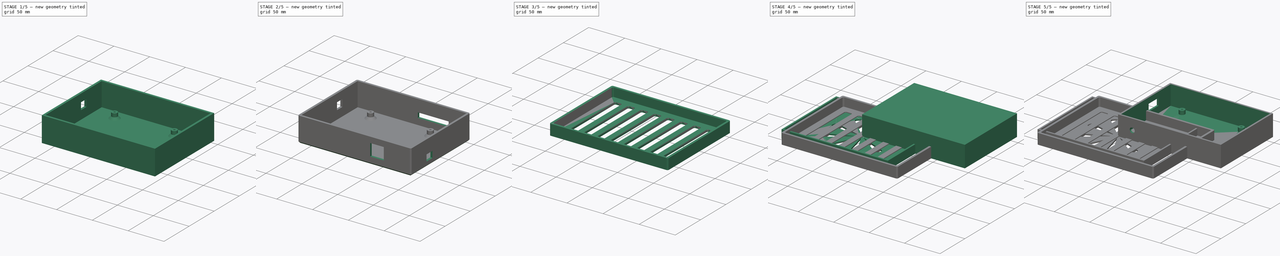
[diagram: build sequence overview — one tinted view per stage of 5, left to right]
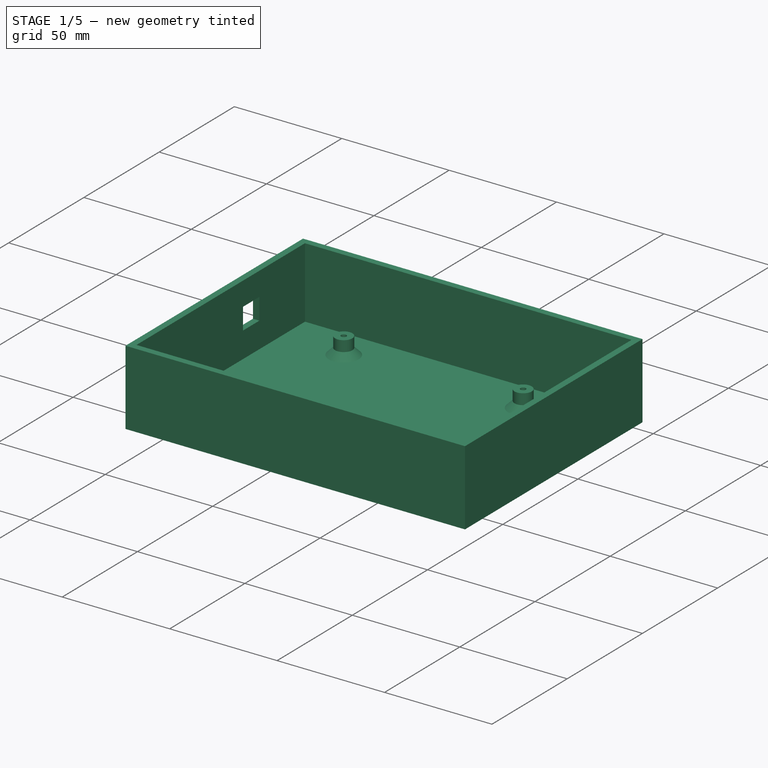
[diagram: stage 1 of 5 — iso view after this stage's code; geometry added in this stage tinted green]
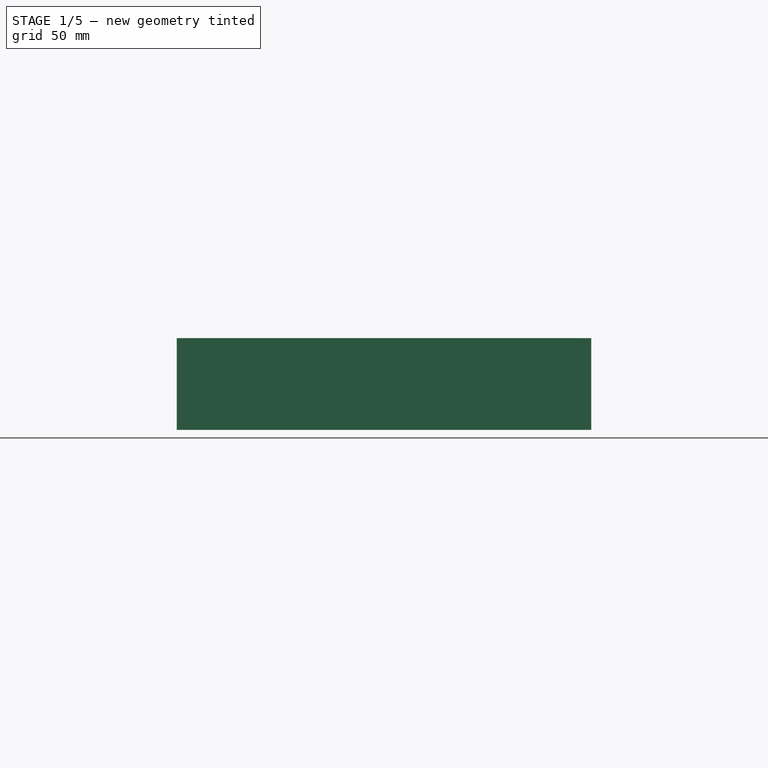
[diagram: stage 1 of 5 — front view after this stage's code; geometry added in this stage tinted green]
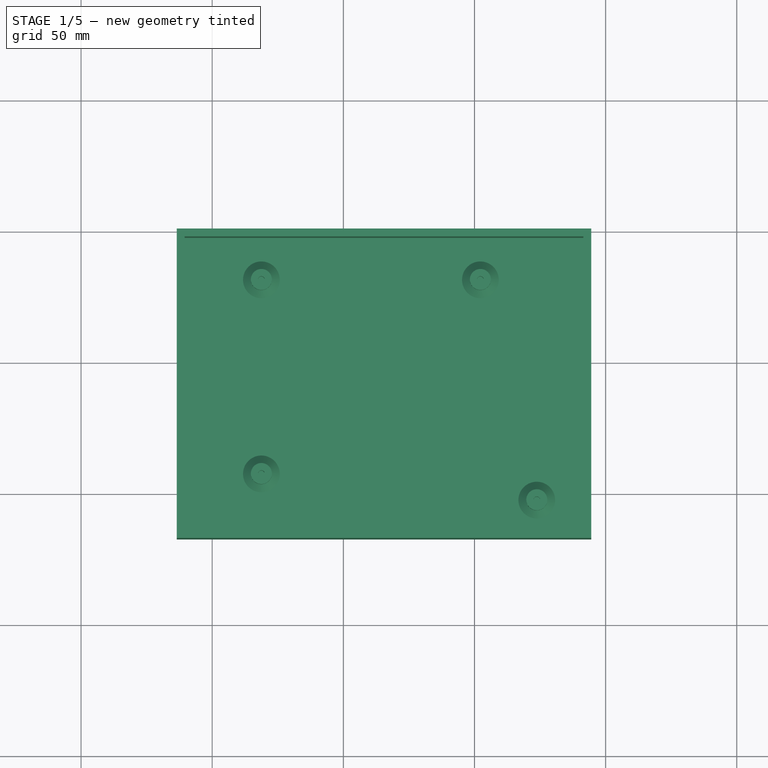
[diagram: stage 1 of 5 — top view after this stage's code; geometry added in this stage tinted green]
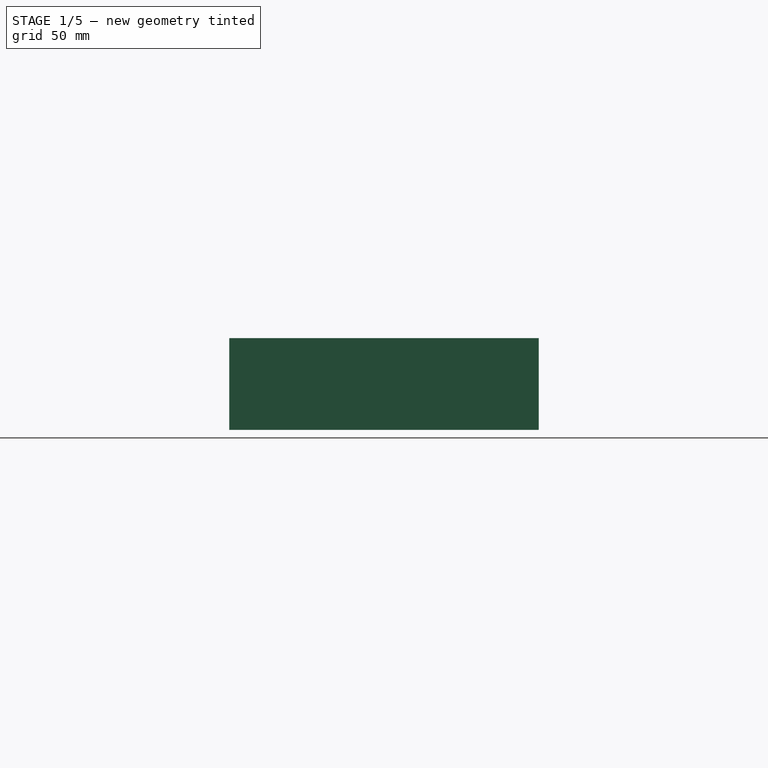
[diagram: stage 1 of 5 — right view after this stage's code; geometry added in this stage tinted green]
FCSTD DOCUMENT  (FreeCAD 1.2R20260224 (Git shallow))
Label: k1 board case
License: All rights reserved
LicenseURL: https://en.wikipedia.org/wiki/All_rights_reserved
objects: Part::Feature×31, Sketcher::SketchObject×20, App::Point×18, App::Part×14, PartDesign::Pocket×13, PartDesign::Pad×6, PartDesign::Body×4, PartDesign::SubShapeBinder×3, PartDesign::Chamfer×2, PartDesign::Fillet×2, PartDesign::PolarPattern×1, PartDesign::LinearPattern×1
note: 151 computed .brp shape members not serialized (recipe doc carries the construction recipe); baked Part::Feature solids carry a one-line shape summary decoded from their .brp

FEATURE [PartDesign::Body] Body001  label="OldTop"
  AllowCompound = false
  Group = -> [Sketch007,Pad002,Sketch008,Pocket004,Sketch009,Pocket005,PolarPattern]
  Origin = -> Origin001
  Tip = -> PolarPattern
FEATURE [App::Point] Origin002  label="Origin"
  Role = Origin
FEATURE [App::Point] Origin003  label="Origin"
  Role = Origin
FEATURE [Part::Feature] Part__Feature  label="B4B-PH-K-S v001"
  Placement = pos=(132.483,89.667,0) rot=(0,0,-1;1.5708rad)
  shape: bbox 4.5 x 9.9 x 9.4 mm, 84 faces (baked)
FEATURE [Part::Feature] Part__Feature001  label="B4B-PH-K-S v002"
  Placement = pos=(132.5,65.65,0) rot=(0,0,-1;1.5708rad)
  shape: bbox 4.5 x 9.9 x 9.4 mm, 84 faces (baked)
FEATURE [Part::Feature] Part__Feature002  label="B4B-PH-K-S v003"
  Placement = pos=(17.6,95.95,-7.461e-13) rot=(0,0,1;0rad)
  shape: bbox 9.9 x 4.5 x 9.4 mm, 84 faces (baked)
FEATURE [Part::Feature] Part__Feature003  label="B5B-PH-K-S v2"
  Placement = pos=(87.7153,6.21529,0) rot=(0,0,1;1.5708rad)
  shape: bbox 4.5 x 11.9 x 9.4 mm, 98 faces (baked)
FEATURE [Part::Feature] Part__Feature004  label="B4B-PH-K-S v004"
  Placement = pos=(132.5,51.45,0) rot=(0,0,-1;1.5708rad)
  shape: bbox 4.5 x 9.9 x 9.4 mm, 84 faces (baked)
FEATURE [Part::Feature] Part__Feature005  label="B3B-PH-K-S v2"
  Placement = pos=(35.4,95.95,0) rot=(0,0,1;0rad)
  shape: bbox 7.9 x 4.5 x 9.4 mm, 70 faces (baked)
FEATURE [Part::Feature] Part__Feature006  label="B3B-PH-K-S v001"
  Placement = pos=(4.1,27.3213,-7.99e-14) rot=(0,0,1;3.14159rad)
  shape: bbox 7.9 x 4.5 x 9.4 mm, 70 faces (baked)
FEATURE [Part::Feature] Part__Feature007  label="B2B-PH-K-S v2"
  Placement = pos=(2.0729,33.5729,0) rot=(0,0,1;1.5708rad)
  shape: bbox 4.5 x 5.9 x 9.4 mm, 56 faces (baked)
FEATURE [Part::Feature] Part__Feature008  label="B2B-PH-K-S v001"
  Placement = pos=(7.0729,33.5729,0) rot=(0,0,1;1.5708rad)
  shape: bbox 4.5 x 5.9 x 9.4 mm, 56 faces (baked)
FEATURE [Part::Feature] Part__Feature009  label="JST 2p"
  Placement = pos=(-0.30094,0.0605134,0.151975) rot=(0,0,1;0rad)
  shape: bbox 7.54 x 5.7 x 10 mm, 72 faces (baked)
FEATURE [App::Part] JST_2_54X2P_v2  label="JST 2.54X2P v2"
  Group = -> [Part__Feature009]
  Origin = -> Origin324
  Placement = pos=(4.9,22.1,0) rot=(0,0,1;3.14159rad)
FEATURE [App::Point] Origin325  label="Origin441"
  Role = Origin
FEATURE [Part::Feature] Part__Feature010  label="JST 2p001"
  Placement = pos=(-0.30094,0.0605134,0.151975) rot=(0,0,1;0rad)
  shape: bbox 7.54 x 5.7 x 10 mm, 72 faces (baked)
FEATURE [App::Part] JST_2_54X2P_v001  label="JST 2.54X2P v001"
  Group = -> [Part__Feature010]
  Origin = -> Origin326
  Placement = pos=(4.9,16.1,0) rot=(0,0,1;3.14159rad)
FEATURE [App::Point] Origin327  label="Origin443"
  Role = Origin
FEATURE [Part::Feature] Part__Feature011  label="JST 2p002"
  Placement = pos=(-0.30094,0.0605134,0.151975) rot=(0,0,1;0rad)
  shape: bbox 7.54 x 5.7 x 10 mm, 72 faces (baked)
FEATURE [App::Part] JST_2_54X2P_v002  label="JST 2.54X2P v002"
  Group = -> [Part__Feature011]
  Origin = -> Origin328
  Placement = pos=(4.9,9.6,0) rot=(0,0,1;3.14159rad)
FEATURE [App::Point] Origin329  label="Origin445"
  Role = Origin
FEATURE [Part::Feature] Part__Feature012  label="JST 4p"
  shape: bbox 12.62 x 5.7 x 10 mm, 116 faces (baked)
FEATURE [App::Part] JST_2_54X4P_v2  label="JST 2.54X4P v2"
  Group = -> [Part__Feature012]
  Origin = -> Origin330
  Placement = pos=(75.2,2.8,0) rot=(0,0,1;3.14159rad)
FEATURE [App::Point] Origin331  label="Origin447"
  Role = Origin
FEATURE [Part::Feature] Part__Feature013  label="JST 4p001"
  shape: bbox 12.62 x 5.7 x 10 mm, 116 faces (baked)
FEATURE [App::Part] JST_2_54X4P_v001  label="JST 2.54X4P v001"
  Group = -> [Part__Feature013]
  Origin = -> Origin332
  Placement = pos=(49.6,2.8,0) rot=(0,0,1;3.14159rad)
FEATURE [App::Point] Origin333  label="Origin449"
  Role = Origin
FEATURE [Part::Feature] Part__Feature014  label="JST 4p002"
  shape: bbox 12.62 x 5.7 x 10 mm, 116 faces (baked)
FEATURE [App::Part] JST_2_54X4P_v002  label="JST 2.54X4P v002"
  Group = -> [Part__Feature014]
  Origin = -> Origin334
  Placement = pos=(62.4,2.8,0) rot=(0,0,1;3.14159rad)
FEATURE [App::Point] Origin335  label="Origin451"
  Role = Origin
FEATURE [Part::Feature] Part__Feature015  label="JST 4p003"
  shape: bbox 12.62 x 5.7 x 10 mm, 116 faces (baked)
FEATURE [App::Part] JST_2_54X4P_v003  label="JST 2.54X4P v003"
  Group = -> [Part__Feature015]
  Origin = -> Origin336
  Placement = pos=(81.3,2.6,0) rot=(0,0,1;1.5708rad)
FEATURE [App::Point] Origin337  label="Origin453"
  Role = Origin
FEATURE [Part::Feature] Part__Feature016  label="B2P-VH v2"
  Placement = pos=(3.8886,40.8886,0) rot=(0,0,1;1.5708rad)
  shape: bbox 8.5 x 7.86 x 14.6 mm, 42 faces (baked)
FEATURE [Part::Feature] Part__Feature017  label="B2P-VH v001"
  Placement = pos=(3.8886,49.3886,0) rot=(0,0,1;1.5708rad)
  shape: bbox 8.5 x 7.86 x 14.6 mm, 42 faces (baked)
FEATURE [Part::Feature] Part__Feature018  label="DG129-5.0-02P-14-00AH v4"
  Placement = pos=(10.9997,64.0189,-0.0191324) rot=(0.57735,-0.57735,-0.57735;2.0944rad)
  shape: bbox 10.5 x 14.5 x 23 mm, 396 faces (baked)
FEATURE [Part::Feature] Part__Feature019  label="DG129-5.0-02P-14-00AH v001"
  Placement = pos=(10.9997,74.0189,-0.0191324) rot=(0.57735,-0.57735,-0.57735;2.0944rad)
  shape: bbox 10.5 x 14.5 x 23 mm, 396 faces (baked)
FEATURE [Part::Feature] Part__Feature020  label="FAUS"
  Placement = pos=(1.1e-15,-2.3368,0) rot=(0,0,1;0rad)
  shape: bbox 1.57 x 0.3 x 2.54 mm, 8 faces (baked)
FEATURE [Part::Feature] Part__Feature021  label="FAUS001"
  Placement = pos=(1.1e-15,-2.3368,0) rot=(0,0,1;0rad)
  shape: bbox 1.57 x 0.3 x 2.54 mm, 8 faces (baked)
FEATURE [Part::Feature] Part__Feature022  label="FAUS002"
  Placement = pos=(1.1e-15,-2.3368,0) rot=(0,0,1;0rad)
  shape: bbox 1.57 x 0.3 x 2.54 mm, 8 faces (baked)
FEATURE [Part::Feature] Part__Feature023  label="FAUS003"
  Placement = pos=(1.1e-15,-2.3368,0) rot=(0,0,1;0rad)
  shape: bbox 16 x 6 x 8 mm, 26 faces (baked)
FEATURE [Part::Feature] Part__Feature024  label="FAUS004"
  Placement = pos=(1.1e-15,-2.3368,0) rot=(0,0,1;0rad)
  shape: bbox 1.57 x 0.3 x 2.54 mm, 8 faces (baked)
FEATURE [Part::Feature] Part__Feature025  label="FAUS005"
  Placement = pos=(1.1e-15,-2.3368,0) rot=(0,0,1;0rad)
  shape: bbox 3.66 x 2.011 x 4.96 mm, 22 faces (baked)
FEATURE [Part::Feature] Part__Feature026  label="FAUS006"
  Placement = pos=(1.1e-15,-2.3368,0) rot=(0,0,1;0rad)
  shape: bbox 3.66 x 2.012 x 4.96 mm, 22 faces (baked)
FEATURE [App::Part] FAUS007
  Group = -> [Part__Feature020,Part__Feature021,Part__Feature022,Part__Feature023,Part__Feature024,Part__Feature025,Part__Feature026]
  Origin = -> Origin338
FEATURE [App::Point] Origin339  label="Origin455"
  Role = Origin
FEATURE [App::Part] Fuse_connector_v2  label="Fuse connector v2"
  Group = -> [FAUS007]
  Origin = -> Origin340
  Placement = pos=(10,79,0) rot=(0,0,1;0rad)
FEATURE [App::Point] Origin341  label="Origin457"
  Role = Origin
FEATURE [Part::Feature] Part__Feature027  label="Fuse - mini 15A v2"
  Placement = pos=(10.0341,79.3067,18.4917) rot=(0,0,-1;0.001182rad)
  shape: bbox 11 x 3.912 x 8.8 mm, 98 faces (baked)
FEATURE [Part::Feature] Part__Feature028  label="Fuse - mini 15A v001"
  Placement = pos=(10.0341,79.3067,18.4917) rot=(0,0,-1;0.001182rad)
  shape: bbox 10.9 x 0.9129 x 16.2 mm, 72 faces (baked)
FEATURE [App::Part] Fuse___mini_15A_v002  label="Fuse - mini 15A v002"
  Group = -> [Part__Feature027,Part__Feature028]
  Origin = -> Origin342
FEATURE [App::Point] Origin343  label="Origin459"
  Role = Origin
FEATURE [Part::Feature] Part__Feature029  label="SOLID028"
  shape: bbox 138 x 98 x 1.7 mm, 14 faces (baked)
FEATURE [App::Part] K1_Motherboard  label="K1 Motherboard"
  Group = -> [Part__Feature,Part__Feature001,Part__Feature002,Part__Feature003,Part__Feature004,Part__Feature005,Part__Feature006,Part__Feature007,Part__Feature008,JST_2_54X2P_v2,JST_2_54X2P_v001,JST_2_54X2P_v002,JST_2_54X4P_v2,JST_2_54X4P_v001,JST_2_54X4P_v002,JST_2_54X4P_v003,Part__Feature016,Part__Feature017,Part__Feature018,Part__Feature019,Fuse_connector_v2,Fuse___mini_15A_v002,Part__Feature029]
  Origin = -> Origin344
  Placement = pos=(142.25,16.5,43.05) rot=(0.707107,-0.707107,0;3.14159rad)
FEATURE [App::Point] Origin345  label="Origin461"
  Role = Origin
FEATURE [App::Part] K1_Motherboard_v18  label="K1 Motherboard v18"
  Group = -> [K1_Motherboard]
  Origin = -> Origin346
FEATURE [App::Point] Origin347  label="Origin463"
  Role = Origin
FEATURE [App::Part] Electrical_Bay  label="Electrical Bay"
  Group = -> [K1_Motherboard_v18]
  Origin = -> Origin348
FEATURE [App::Point] Origin349  label="Origin465"
  Role = Origin
FEATURE [App::Part] Creality_K1_Assembly___Alpha_v1  label="Creality K1 Assembly - Alpha v1"
  Group = -> [Electrical_Bay]
  Origin = -> Origin350
  Placement = pos=(-37,85,42) rot=(-0.707107,0.707107,0;3.14159rad)
FEATURE [App::Point] Origin351  label="Origin467"
  Role = Origin
FEATURE [App::Point] Origin353  label="Origin469"
  Role = Origin
FEATURE [PartDesign::SubShapeBinder] Binder001
  BindCopyOnChange = 0
  BindMode = 0
  ClaimChildren = false
  Context = -> Body003 [Binder001.]
  Fuse = false
  MakeFace = true
  OffsetFill = false
  OffsetIntersection = false
  OffsetJoinType = 0
  OffsetOpenResult = false
  PartialLoad = false
  Placement = pos=(0,0,14) rot=(0,0,1;0rad)
  Refine = true
  Relative = true
  Support = -> [Creality_K1_Assembly___Alpha_v1]
  _Version = 2
FEATURE [Sketcher::SketchObject] Sketch010
  ArcFitTolerance = 1e-06
  AttachmentSupport = -> [Origin352]
  ExternalGeometry = -> [Binder001]
  ExternalTypes = [0,0]
  FullyConstrained = true
  MakeInternals = false
  MapMode = 5
  sketch-geometry (4):
    g0: LineSegment StartX=-63.5 StartY=50.75 StartZ=0 EndX=-63.5 EndY=-67.25 EndZ=0
    g1: LineSegment StartX=-63.5 StartY=-67.25 StartZ=0 EndX=94.5 EndY=-67.25 EndZ=0
    g2: LineSegment StartX=94.5 StartY=-67.25 StartZ=0 EndX=94.5 EndY=50.75 EndZ=0
    g3: LineSegment StartX=94.5 StartY=50.75 StartZ=0 EndX=-63.5 EndY=50.75 EndZ=0
  constraints (12):
    c: Coincident(g0,g1)
    c: Coincident(g1,g2)
    c: Coincident(g2,g3)
    c: Coincident(g3,g0)
    c: Vertical(g0)
    c: Vertical(g2)
    c: Horizontal(g1)
    c: Horizontal(g3)
    c: DistanceX(g3,g3) = 158
    c: DistanceY(g0,g0) = 118
    c: DistanceX(g0,g-3) = 10
    c: DistanceY(g-4,g0) = 10
FEATURE [PartDesign::Pad] Pad003
  Direction = (0,0,1)
  Length = 35
  Length2 = 10
  Profile = -> Sketch010
  ReferenceAxis = -> Sketch010 [N_Axis]
  Refine = true
  SideType = 0
  Suppressed = false
  Type = 0
  Type2 = 0
FEATURE [Sketcher::SketchObject] Sketch011
  ArcFitTolerance = 1e-06
  AttachmentSupport = -> [Pad003]
  ExternalGeometry = -> [Pad003]
  ExternalTypes = [0,0]
  FullyConstrained = true
  MakeInternals = false
  MapMode = 5
  Placement = pos=(0,0,35) rot=(0,0,1;0rad)
  sketch-geometry (4):
    g0: LineSegment StartX=-60.5 StartY=47.75 StartZ=0 EndX=-60.5 EndY=-64.25 EndZ=0
    g1: LineSegment StartX=-60.5 StartY=-64.25 StartZ=0 EndX=91.5 EndY=-64.25 EndZ=0
    g2: LineSegment StartX=91.5 StartY=-64.25 StartZ=0 EndX=91.5 EndY=47.75 EndZ=0
    g3: LineSegment StartX=91.5 StartY=47.75 StartZ=0 EndX=-60.5 EndY=47.75 EndZ=0
  constraints (12):
    c: Coincident(g1,g2)
    c: Coincident(g2,g3)
    c: Coincident(g3,g0)
    c: Vertical(g0)
    c: Vertical(g2)
    c: Horizontal(g1)
    c: Horizontal(g3)
    c: DistanceX(g2,g-4) = 3
    c: DistanceY(g0,g-3) = 3
    c: DistanceY(g-3,g0) = 3
    c: DistanceX(g-3,g0) = 3
    c: Coincident(g1,g0)
FEATURE [PartDesign::Pocket] Pocket006
  BaseFeature = -> Pad003
  Direction = (0,0,-1)
  Length = 33
  Length2 = 5
  Profile = -> Sketch011
  ReferenceAxis = -> Sketch011 [N_Axis]
  Refine = true
  SideType = 0
  Suppressed = false
  Type = 0
  Type2 = 0
FEATURE [Sketcher::SketchObject] Sketch012
  ArcFitTolerance = 1e-06
  AttachmentSupport = -> [Pocket006]
  ExternalGeometry = -> [Binder001]
  ExternalTypes = [0,0,0,0]
  FullyConstrained = true
  MakeInternals = false
  MapMode = 5
  Placement = pos=(0,0,2) rot=(0,0,1;0rad)
  sketch-geometry (8):
    g0: Circle CenterX=-31.25 CenterY=31.75 CenterZ=0 NormalX=0 NormalY=0 NormalZ=1 AngleXU=0 Radius=4
    g1: Circle CenterX=52.25 CenterY=31.75 CenterZ=0 NormalX=0 NormalY=0 NormalZ=1 AngleXU=0 Radius=4
    g2: Circle CenterX=73.75 CenterY=-52.25 CenterZ=0 NormalX=0 NormalY=0 NormalZ=1 AngleXU=0 Radius=4
    g3: Circle CenterX=-31.25 CenterY=-42.25 CenterZ=0 NormalX=0 NormalY=0 NormalZ=1 AngleXU=0 Radius=4
    g4: Circle CenterX=-31.25 CenterY=31.75 CenterZ=0 NormalX=0 NormalY=0 NormalZ=1 AngleXU=0 Radius=1.25
    g5: Circle CenterX=52.25 CenterY=31.75 CenterZ=0 NormalX=0 NormalY=0 NormalZ=1 AngleXU=0 Radius=1.25
    g6: Circle CenterX=73.75 CenterY=-52.25 CenterZ=0 NormalX=0 NormalY=0 NormalZ=1 AngleXU=0 Radius=1.25
    g7: Circle CenterX=-31.25 CenterY=-42.25 CenterZ=0 NormalX=0 NormalY=0 NormalZ=1 AngleXU=0 Radius=1.25
  constraints (16):
    c: Coincident(g0,g-3)
    c: Coincident(g1,g-4)
    c: Coincident(g2,g-5)
    c: Coincident(g3,g-6)
    c: Equal(g1,g2)
    c: Equal(g2,g3)
    c: Equal(g3,g0)
    c: Diameter(g0) = 8
    c: Coincident(g4,g0)
    c: Coincident(g5,g1)
    c: Coincident(g6,g2)
    c: Coincident(g7,g3)
    c: Equal(g7,g4)
    c: Equal(g4,g5)
    c: Equal(g5,g6)
    c: Diameter(g5) = 2.5
FEATURE [PartDesign::Pad] Pad004
  BaseFeature = -> Pocket006
  Direction = (0,0,1)
  Length = 8
  Length2 = 10
  Profile = -> Sketch012
  ReferenceAxis = -> Sketch012 [N_Axis]
  Refine = true
  SideType = 0
  Suppressed = false
  Type = 0
  Type2 = 0
FEATURE [PartDesign::Chamfer] Chamfer
  Angle = 45
  Base = -> Pad004 [Edge28,Edge27,Edge25,Edge26]
  BaseFeature = -> Pad004
  ChamferType = 0
  FlipDirection = false
  Refine = true
  Size = 3
  Size2 = 1
  SupportTransform = false
  Suppressed = false
  UseAllEdges = false
FEATURE [Sketcher::SketchObject] Sketch013
  ArcFitTolerance = 1e-06
  AttachmentSupport = -> [Chamfer]
  ExternalGeometry = -> [Chamfer]
  ExternalTypes = [0]
  FullyConstrained = false
  MakeInternals = false
  MapMode = 5
  Placement = pos=(-60.5,0,0) rot=(0.57735,0.57735,0.57735;2.0944rad)
  sketch-geometry (4):
    g0: LineSegment StartX=6.58474 StartY=24 StartZ=0 EndX=6.58474 EndY=14 EndZ=0
    g1: LineSegment StartX=6.58474 StartY=14 StartZ=0 EndX=17.4539 EndY=14 EndZ=0
    g2: LineSegment StartX=17.4539 StartY=14 StartZ=0 EndX=17.4539 EndY=24 EndZ=0
    g3: LineSegment StartX=17.4539 StartY=24 StartZ=0 EndX=6.58474 EndY=24 EndZ=0
  constraints (10):
    c: Coincident(g0,g1)
    c: Coincident(g1,g2)
    c: Coincident(g2,g3)
    c: Coincident(g3,g0)
    c: Vertical(g0)
    c: Vertical(g2)
    c: Horizontal(g1)
    c: Horizontal(g3)
    c: Distance(g1,g-3) = 12
    c: DistanceY(g2,g2) = 10
FEATURE [PartDesign::Pocket] Pocket007
  BaseFeature = -> Chamfer
  Direction = (-1,0,0)
  Length = 5
  Length2 = 5
  Profile = -> Sketch013
  ReferenceAxis = -> Sketch013 [N_Axis]
  Refine = true
  SideType = 0
  Suppressed = false
  Type = 2
  Type2 = 0
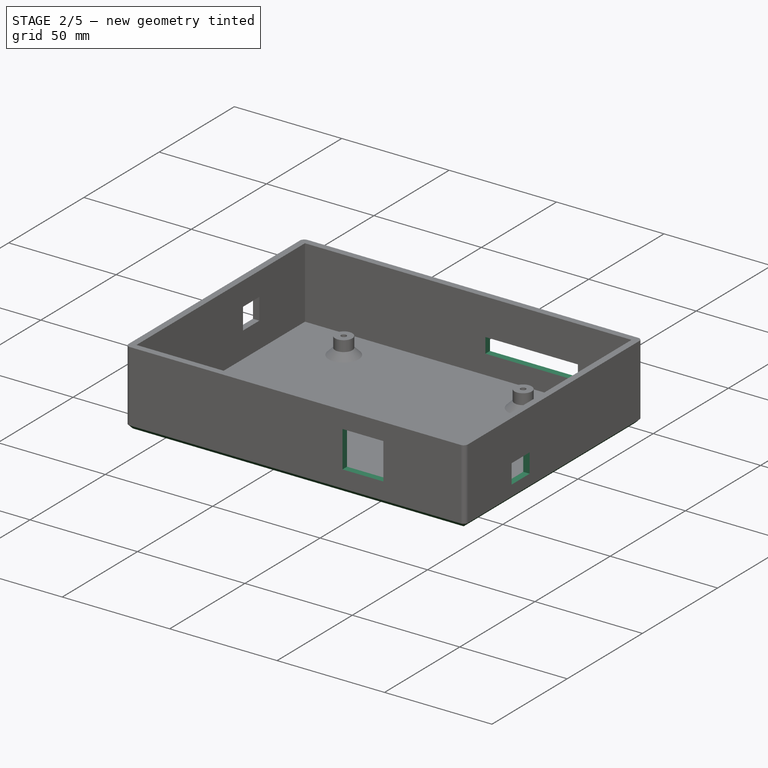
[diagram: stage 2 of 5 — iso view after this stage's code; geometry added in this stage tinted green]
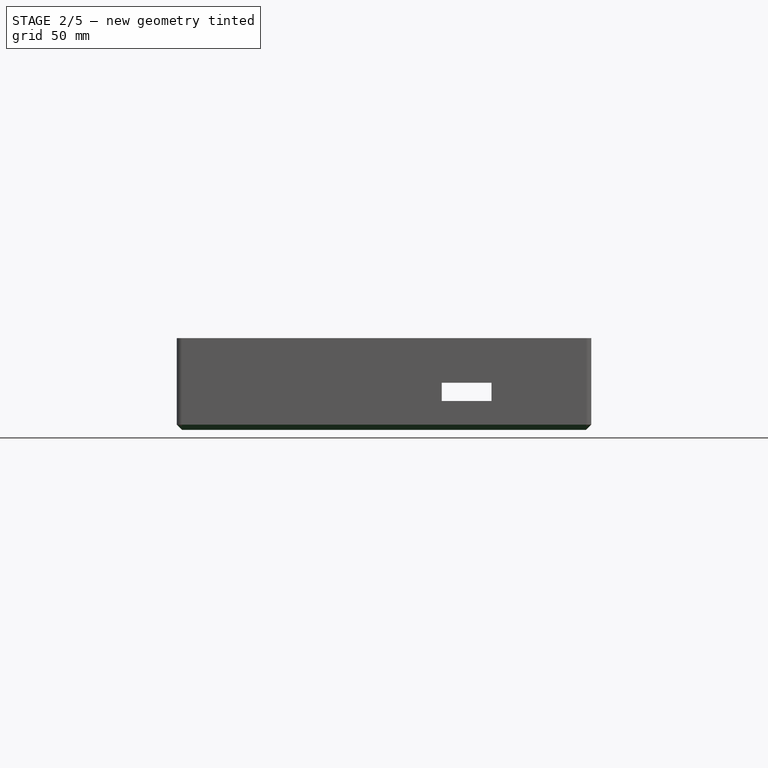
[diagram: stage 2 of 5 — front view after this stage's code; geometry added in this stage tinted green]
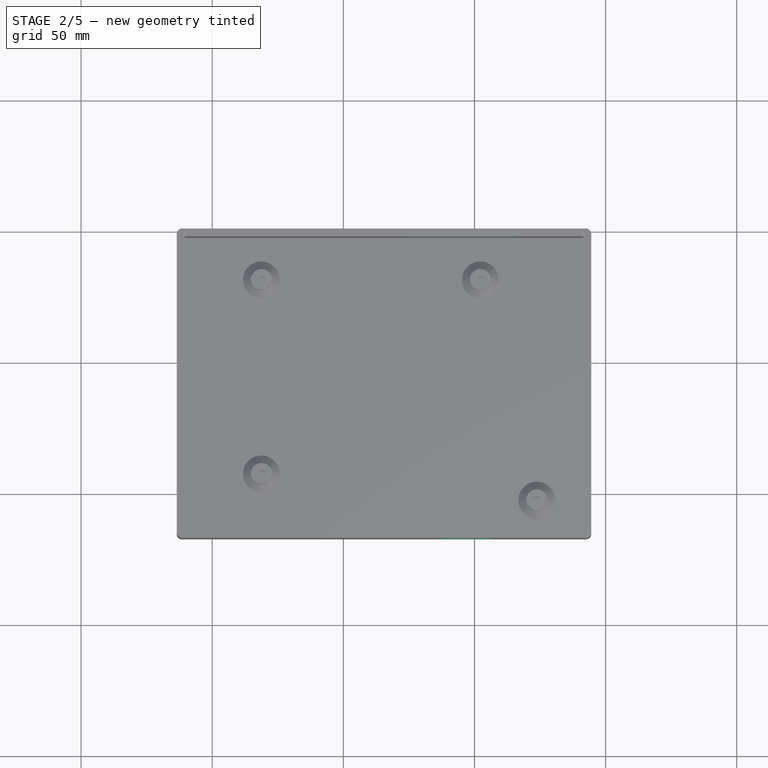
[diagram: stage 2 of 5 — top view after this stage's code; geometry added in this stage tinted green]
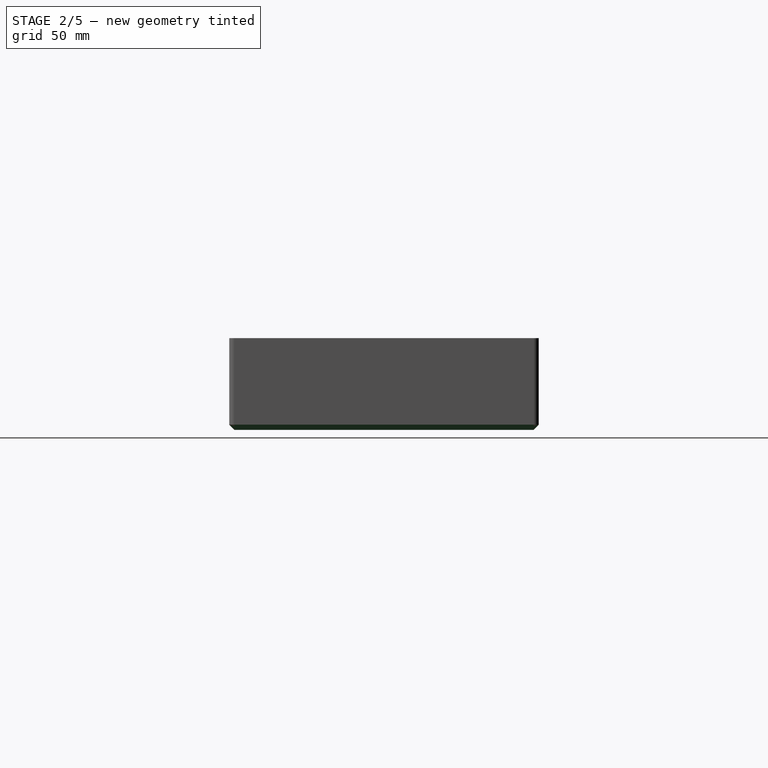
[diagram: stage 2 of 5 — right view after this stage's code; geometry added in this stage tinted green]
FEATURE [Sketcher::SketchObject] Sketch014
  ArcFitTolerance = 1e-06
  AttachmentSupport = -> [Pocket007]
  ExternalGeometry = -> [Binder001,Pocket007]
  ExternalTypes = [0,0]
  FullyConstrained = true
  MakeInternals = false
  MapMode = 5
  Placement = pos=(0,-64.25,0) rot=(0,0.707107,0.707107;3.14159rad)
  sketch-geometry (4):
    g0: LineSegment StartX=-56.5 StartY=27 StartZ=0 EndX=-56.5 EndY=10 EndZ=0
    g1: LineSegment StartX=-56.5 StartY=10 StartZ=0 EndX=-37.5 EndY=10 EndZ=0
    g2: LineSegment StartX=-37.5 StartY=10 StartZ=0 EndX=-37.5 EndY=27 EndZ=0
    g3: LineSegment StartX=-37.5 StartY=27 StartZ=0 EndX=-56.5 EndY=27 EndZ=0
  constraints (12):
    c: Coincident(g0,g1)
    c: Coincident(g1,g2)
    c: Coincident(g2,g3)
    c: Coincident(g3,g0)
    c: Vertical(g0)
    c: Vertical(g2)
    c: Horizontal(g1)
    c: Horizontal(g3)
    c: Distance(g-3,g0) = 28
    c: DistanceX(g3,g3) = 19
    c: Distance(g0,g-4) = 8
    c: DistanceY(g0,g0) = 17
FEATURE [PartDesign::Pocket] Pocket008
  BaseFeature = -> Pocket007
  Direction = (0,-1,2e-16)
  Length = 5
  Length2 = 5
  Profile = -> Sketch014
  ReferenceAxis = -> Sketch014 [N_Axis]
  Refine = true
  SideType = 0
  Suppressed = false
  Type = 1
  Type2 = 0
FEATURE [Sketcher::SketchObject] Sketch015
  ArcFitTolerance = 1e-06
  AttachmentSupport = -> [Pocket008]
  ExternalGeometry = -> [Binder001,Pocket008]
  ExternalTypes = [0,0]
  FullyConstrained = true
  MakeInternals = false
  MapMode = 5
  Placement = pos=(0,47.75,0) rot=(1,0,0;1.5708rad)
  sketch-geometry (4):
    g0: LineSegment StartX=23.5 StartY=18 StartZ=0 EndX=23.5 EndY=11 EndZ=0
    g1: LineSegment StartX=23.5 StartY=11 StartZ=0 EndX=66.5 EndY=11 EndZ=0
    g2: LineSegment StartX=66.5 StartY=11 StartZ=0 EndX=66.5 EndY=18 EndZ=0
    g3: LineSegment StartX=66.5 StartY=18 StartZ=0 EndX=23.5 EndY=18 EndZ=0
  constraints (12):
    c: Coincident(g0,g1)
    c: Coincident(g1,g2)
    c: Coincident(g2,g3)
    c: Coincident(g3,g0)
    c: Vertical(g0)
    c: Vertical(g2)
    c: Horizontal(g1)
    c: Horizontal(g3)
    c: DistanceX(g1,g-3) = 18
    c: Distance(g1,g-4) = 9
    c: DistanceX(g3,g3) = 43
    c: DistanceY(g0,g0) = 7
FEATURE [PartDesign::Pocket] Pocket009
  BaseFeature = -> Pocket008
  Direction = (0,1,-2e-16)
  Length = 5
  Length2 = 5
  Profile = -> Sketch015
  ReferenceAxis = -> Sketch015 [N_Axis]
  Refine = true
  SideType = 0
  Suppressed = false
  Type = 1
  Type2 = 0
FEATURE [PartDesign::Fillet] Fillet
  Base = -> Pocket009 [Edge80,Edge76,Edge74,Edge77]
  BaseFeature = -> Pocket009
  Radius = 2
  Refine = true
  SupportTransform = false
  Suppressed = false
  UseAllEdges = false
FEATURE [PartDesign::Chamfer] Chamfer001
  Angle = 45
  Base = -> Fillet [Edge40,Edge24,Edge13,Edge30]
  BaseFeature = -> Fillet
  ChamferType = 0
  FlipDirection = false
  Refine = true
  Size = 2
  Size2 = 1
  SupportTransform = false
  Suppressed = false
  UseAllEdges = false
FEATURE [Sketcher::SketchObject] Sketch019
  ArcFitTolerance = 1e-06
  AttachmentSupport = -> [Chamfer001]
  ExternalGeometry = -> [Chamfer001,Binder001]
  ExternalTypes = [0,0]
  FullyConstrained = true
  MakeInternals = false
  MapMode = 5
  Placement = pos=(91.5,0,0) rot=(0.57735,-0.57735,-0.57735;2.0944rad)
  sketch-geometry (4):
    g0: LineSegment StartX=24.25 StartY=16 StartZ=0 EndX=24.25 EndY=7 EndZ=0
    g1: LineSegment StartX=24.25 StartY=7 StartZ=0 EndX=36.25 EndY=7 EndZ=0
    g2: LineSegment StartX=36.25 StartY=7 StartZ=0 EndX=36.25 EndY=16 EndZ=0
    g3: LineSegment StartX=36.25 StartY=16 StartZ=0 EndX=24.25 EndY=16 EndZ=0
  constraints (12):
    c: Coincident(g0,g1)
    c: Coincident(g1,g2)
    c: Coincident(g2,g3)
    c: Coincident(g3,g0)
    c: Vertical(g0)
    c: Vertical(g2)
    c: Horizontal(g1)
    c: Horizontal(g3)
    c: DistanceX(g2,g-4) = 21
    c: Distance(g3,g3) = 12
    c: Distance(g1,g-3) = 5
    c: Distance(g2,g2) = 9
FEATURE [PartDesign::Pocket] Pocket012
  BaseFeature = -> Chamfer001
  Direction = (1,0,0)
  Length = 5
  Length2 = 5
  Profile = -> Sketch019
  ReferenceAxis = -> Sketch019 [N_Axis]
  Refine = true
  SideType = 0
  Suppressed = false
  Type = 1
  Type2 = 0
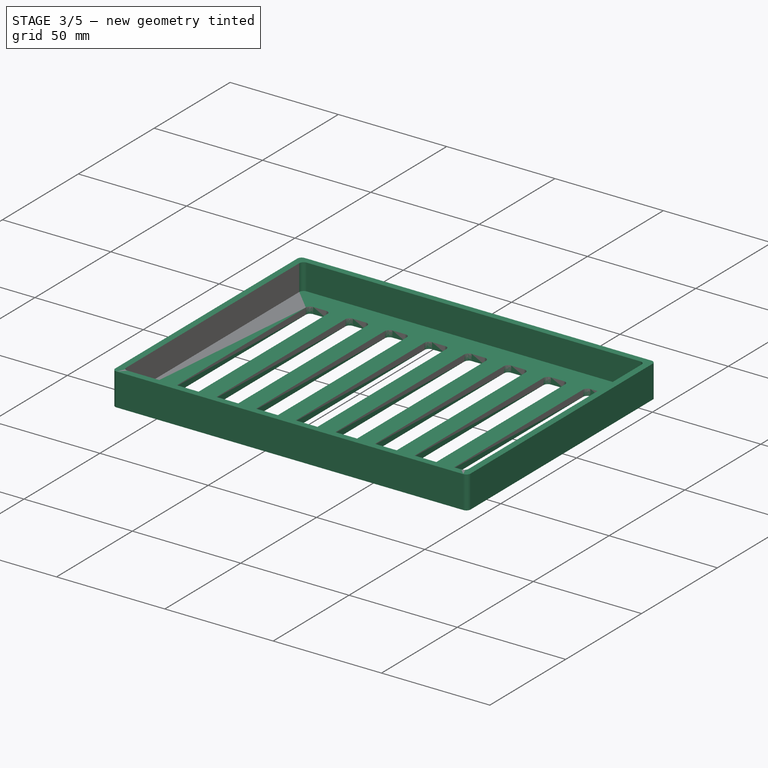
[diagram: stage 3 of 5 — iso view after this stage's code; geometry added in this stage tinted green]
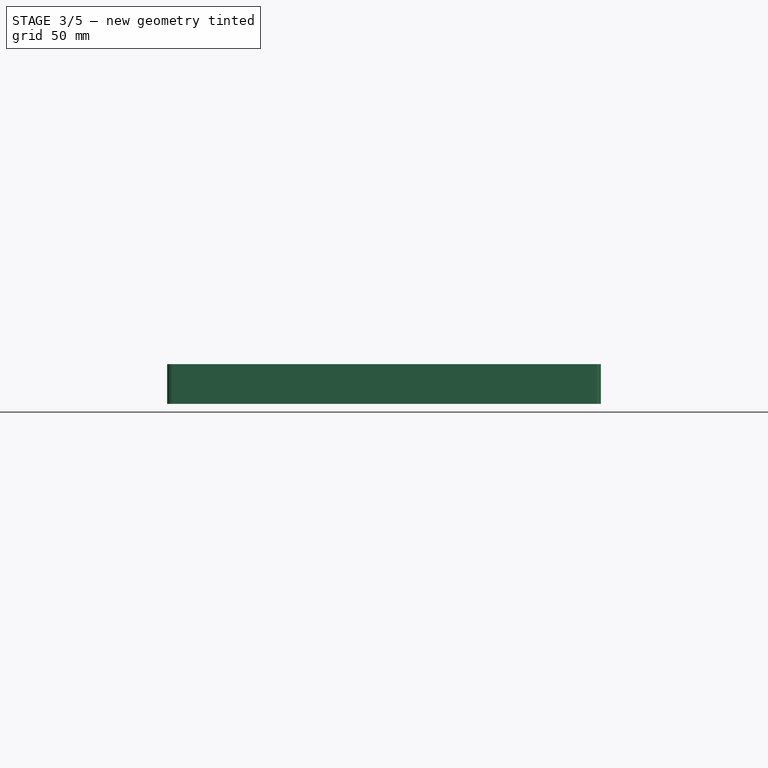
[diagram: stage 3 of 5 — front view after this stage's code; geometry added in this stage tinted green]
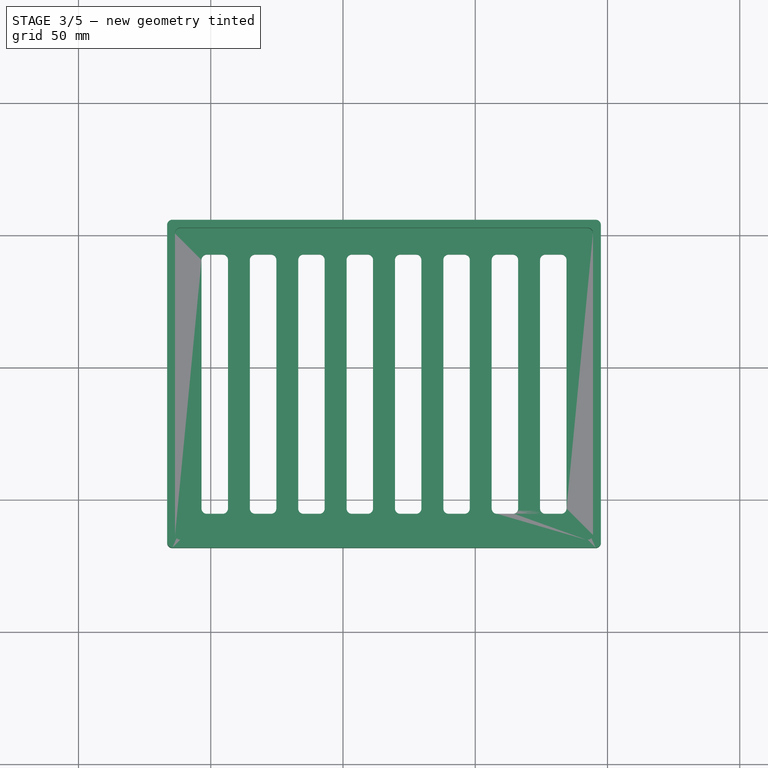
[diagram: stage 3 of 5 — top view after this stage's code; geometry added in this stage tinted green]
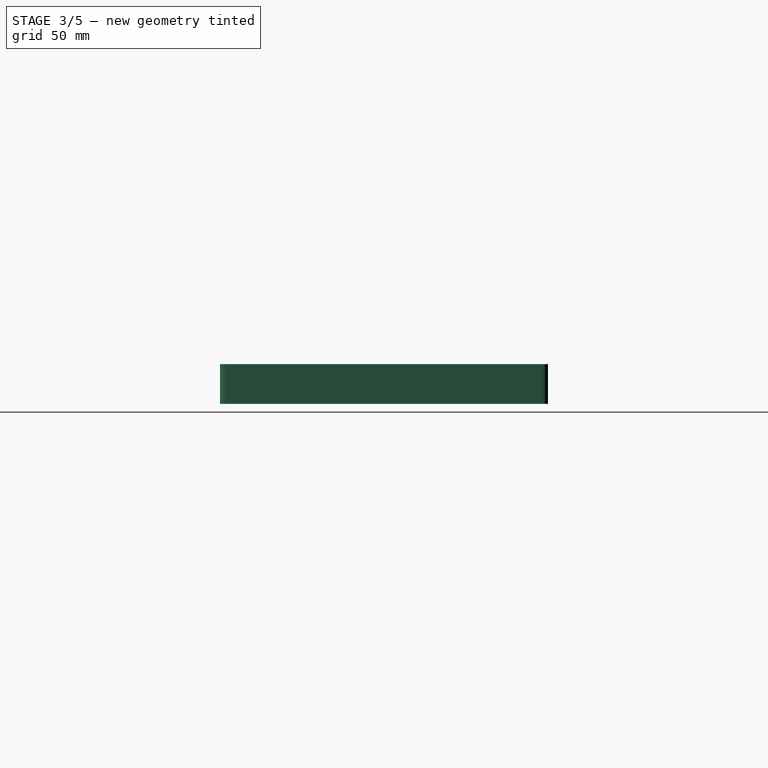
[diagram: stage 3 of 5 — right view after this stage's code; geometry added in this stage tinted green]
FEATURE [PartDesign::Body] Body003  label="Case"
  AllowCompound = true
  Group = -> [Sketch010,Binder001,Pad003,Sketch011,Pocket006,Sketch012,Pad004,Chamfer,Sketch013,Pocket007,Sketch014,Pocket008,Sketch015,Pocket009,Fillet,Chamfer001,Sketch019,Pocket012]
  Origin = -> Origin352
  Tip = -> Pocket012
FEATURE [App::Point] Origin355  label="Origin471"
  Role = Origin
FEATURE [PartDesign::SubShapeBinder] Binder002
  BindCopyOnChange = 0
  BindMode = 0
  ClaimChildren = false
  Context = -> Body004 [Binder002.]
  Fuse = false
  MakeFace = true
  OffsetFill = false
  OffsetIntersection = false
  OffsetJoinType = 0
  OffsetOpenResult = false
  PartialLoad = false
  Placement = pos=(0,2,-5) rot=(0,0,1;0rad)
  Refine = true
  Relative = true
  Support = -> [Body003[Pocket012.Face4]]
  _Version = 2
FEATURE [Sketcher::SketchObject] Sketch020
  ArcFitTolerance = 1e-06
  AttachmentSupport = -> [Origin354]
  ExternalGeometry = -> [Binder002]
  ExternalTypes = [0,0,0,0]
  FullyConstrained = true
  MakeInternals = false
  MapMode = 5
  sketch-geometry (4):
    g0: LineSegment StartX=-66.5 StartY=55.75 StartZ=0 EndX=-66.5 EndY=-68.25 EndZ=0
    g1: LineSegment StartX=-66.5 StartY=-68.25 StartZ=0 EndX=97.5 EndY=-68.25 EndZ=0
    g2: LineSegment StartX=97.5 StartY=-68.25 StartZ=0 EndX=97.5 EndY=55.75 EndZ=0
    g3: LineSegment StartX=97.5 StartY=55.75 StartZ=0 EndX=-66.5 EndY=55.75 EndZ=0
  constraints (12):
    c: Coincident(g0,g1)
    c: Coincident(g1,g2)
    c: Coincident(g2,g3)
    c: Coincident(g3,g0)
    c: Vertical(g0)
    c: Vertical(g2)
    c: Horizontal(g1)
    c: Horizontal(g3)
    c: DistanceY(g1,g-6) = 3
    c: DistanceX(g-3,g1) = 3
    c: DistanceX(g0,g-4) = 3
    c: DistanceY(g-5,g0) = 3
FEATURE [PartDesign::Pad] Pad005
  Direction = (0,0,1)
  Length = 15
  Length2 = 10
  Profile = -> Sketch020
  ReferenceAxis = -> Sketch020 [N_Axis]
  Refine = true
  SideType = 0
  Suppressed = false
  Type = 0
  Type2 = 0
FEATURE [Sketcher::SketchObject] Sketch021
  ArcFitTolerance = 1e-06
  AttachmentSupport = -> [Pad005]
  ExternalGeometry = -> [Binder002]
  ExternalTypes = [0,0,0,0,0,0,0,0]
  FullyConstrained = true
  MakeInternals = false
  MapMode = 5
  Placement = pos=(0,0,15) rot=(0,0,1;0rad)
FEATURE [PartDesign::Pocket] Pocket013
  BaseFeature = -> Pad005
  Direction = (0,0,-1)
  Length = 12
  Length2 = 5
  Profile = -> Sketch021
  ReferenceAxis = -> Sketch021 [N_Axis]
  Refine = true
  SideType = 0
  Suppressed = false
  Type = 0
  Type2 = 0
FEATURE [Sketcher::SketchObject] Sketch022
  ArcFitTolerance = 1e-06
  AttachmentSupport = -> [Pocket013]
  ExternalGeometry = -> [Pocket013]
  ExternalTypes = [0,0,0]
  FullyConstrained = true
  MakeInternals = false
  MapMode = 5
  Placement = pos=(0,0,3) rot=(0,0,1;0rad)
  sketch-geometry (12):
    g0: LineSegment StartX=-53.5 StartY=40.75 StartZ=0 EndX=-53.5 EndY=-53.25 EndZ=0
    g1: LineSegment StartX=-51.5 StartY=-55.25 StartZ=0 EndX=-45.5 EndY=-55.25 EndZ=0
    g2: LineSegment StartX=-43.5 StartY=-53.25 StartZ=0 EndX=-43.5 EndY=40.75 EndZ=0
    g3: LineSegment StartX=-45.5 StartY=42.75 StartZ=0 EndX=-51.5 EndY=42.75 EndZ=0
    g4: ArcOfCircle CenterX=-51.5 CenterY=40.75 CenterZ=0 NormalX=0 NormalY=0 NormalZ=1 AngleXU=0 Radius=2 StartAngle=1.5708 EndAngle=3.14159
    g5: GeomPoint [constr] X=-53.5 Y=42.75 Z=0
    g6: ArcOfCircle CenterX=-45.5 CenterY=40.75 CenterZ=0 NormalX=0 NormalY=0 NormalZ=1 AngleXU=0 Radius=2 StartAngle=-1.8e-15 EndAngle=1.5708
    g7: GeomPoint [constr] X=-43.5 Y=42.75 Z=0
    g8: ArcOfCircle CenterX=-45.5 CenterY=-53.25 CenterZ=0 NormalX=0 NormalY=0 NormalZ=1 AngleXU=0 Radius=2 StartAngle=4.71239 EndAngle=6.28319
    g9: GeomPoint [constr] X=-43.5 Y=-55.25 Z=0
    g10: ArcOfCircle CenterX=-51.5 CenterY=-53.25 CenterZ=0 NormalX=0 NormalY=0 NormalZ=1 AngleXU=0 Radius=2 StartAngle=3.14159 EndAngle=4.71239
    g11: GeomPoint [constr] X=-53.5 Y=-55.25 Z=0
  constraints (28):
    c: Vertical(g0)
    c: Vertical(g2)
    c: Horizontal(g1)
    c: Horizontal(g3)
    c: DistanceX(g-3,g11) = 10
    c: Distance(g11,g9) = 10
    c: DistanceY(g-5,g11) = 10
    c: DistanceY(g5,g-4) = 10
    c: PointOnObject(g5,g3)
    c: PointOnObject(g5,g0)
    c: Tangent(g3,g4) = -1.5708
    c: Tangent(g0,g4) = -1.5708
    c: PointOnObject(g7,g3)
    c: PointOnObject(g7,g2)
    c: Tangent(g3,g6) = -1.5708
    c: Tangent(g2,g6) = -1.5708
    c: PointOnObject(g9,g2)
    c: PointOnObject(g9,g1)
    c: Tangent(g2,g8) = -1.5708
    c: Tangent(g1,g8) = -1.5708
    c: PointOnObject(g11,g0)
    c: PointOnObject(g11,g1)
    c: Tangent(g0,g10) = -1.5708
    c: Tangent(g1,g10) = -1.5708
    c: Equal(g10,g8)
    c: Equal(g8,g6)
    c: Equal(g6,g4)
    c: Radius(g6) = 2
FEATURE [PartDesign::Pocket] Pocket014
  BaseFeature = -> Pocket013
  Direction = (0,0,-1)
  Length = 5
  Length2 = 5
  Profile = -> Sketch022
  ReferenceAxis = -> Sketch022 [N_Axis]
  Refine = true
  SideType = 0
  Suppressed = false
  Type = 0
  Type2 = 0
FEATURE [PartDesign::LinearPattern] LinearPattern
  BaseFeature = -> Pocket014
  Direction = -> Sketch022 [H_Axis]
  Direction2 = -> Sketch022 [V_Axis]
  Length = 128
  Length2 = 100
  Mode = 0
  Mode2 = 0
  Occurrences = 8
  Occurrences2 = 1
  Offset = 18.2857
  Offset2 = 100
  Originals = -> [Pocket014]
  Refine = true
  Reversed2 = false
  SpacingPattern = [0]
  SpacingPattern2 = [0]
  Spacings = [-1,-1,-1,-1,-1,-1,-1]
  Suppressed = false
  TransformMode = 0
FEATURE [PartDesign::Fillet] Fillet001
  Base = -> LinearPattern [Edge8,Edge5,Edge1,Edge2]
  BaseFeature = -> LinearPattern
  Radius = 2
  Refine = true
  SupportTransform = false
  Suppressed = false
  UseAllEdges = false
FEATURE [PartDesign::Body] Body004  label="Lid"
  AllowCompound = true
  Group = -> [Binder002,Sketch020,Pad005,Sketch021,Pocket013,Sketch022,Pocket014,LinearPattern,Fillet001]
  Origin = -> Origin354
  Tip = -> Fillet001
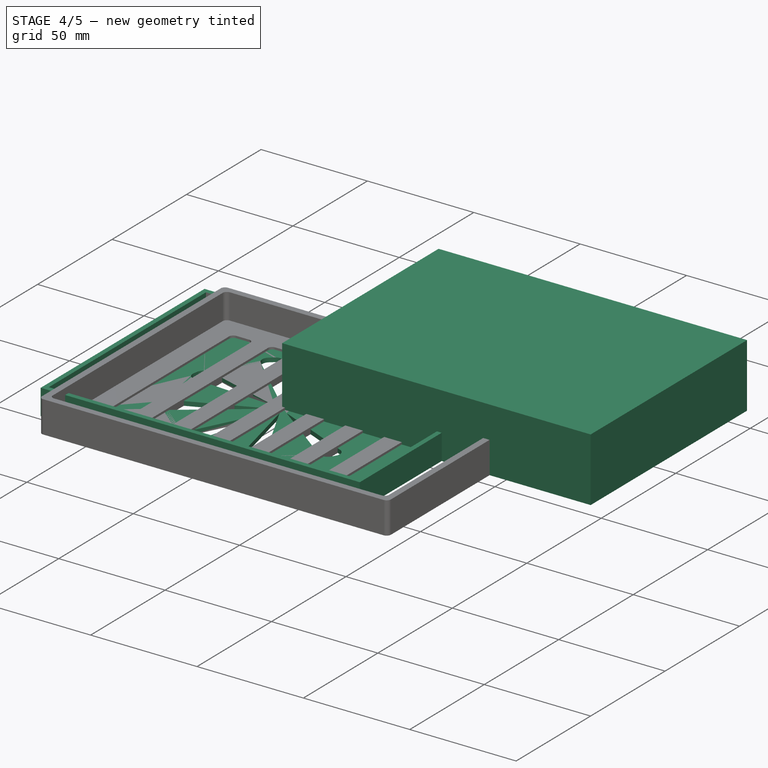
[diagram: stage 4 of 5 — iso view after this stage's code; geometry added in this stage tinted green]
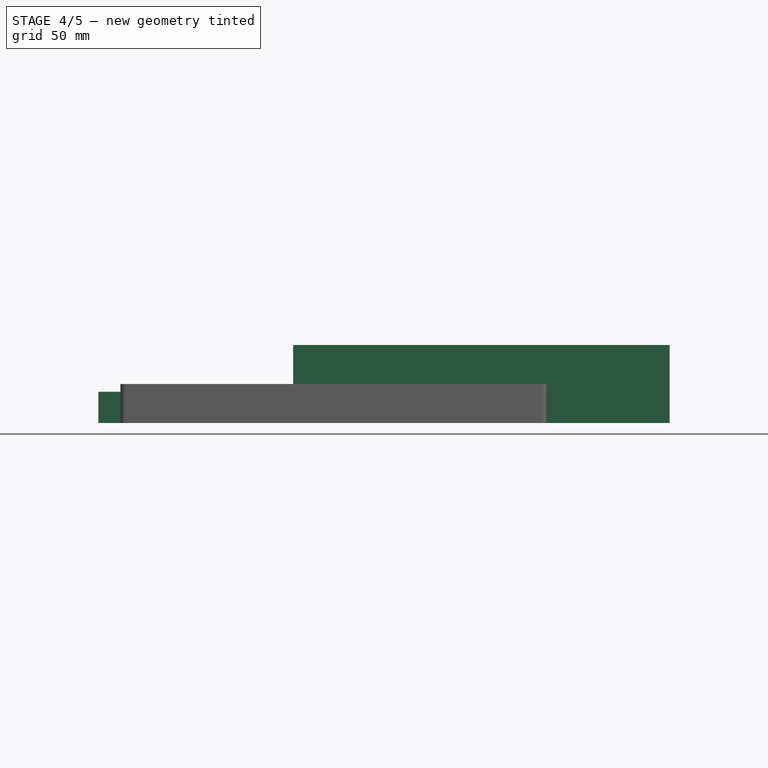
[diagram: stage 4 of 5 — front view after this stage's code; geometry added in this stage tinted green]
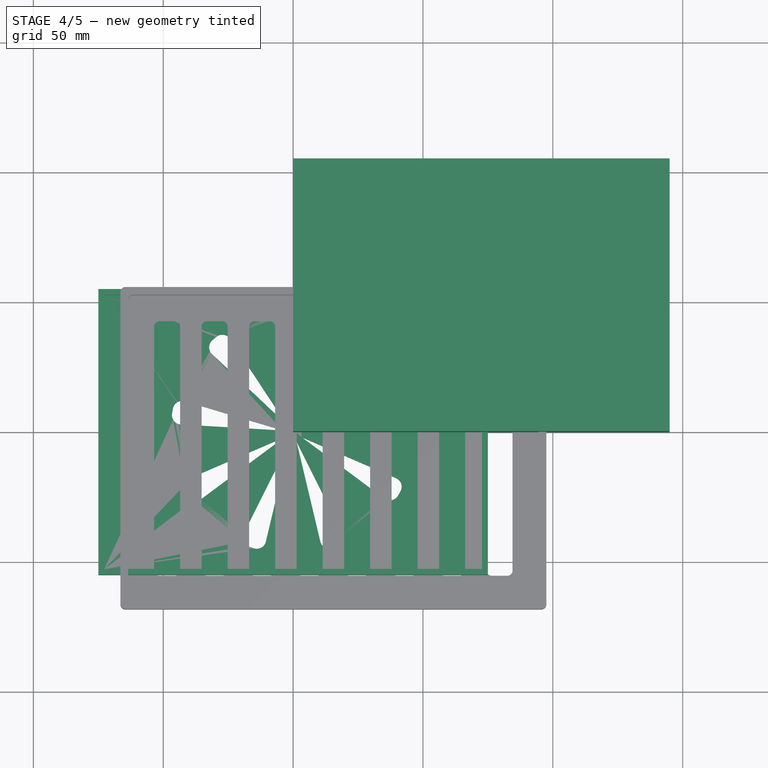
[diagram: stage 4 of 5 — top view after this stage's code; geometry added in this stage tinted green]
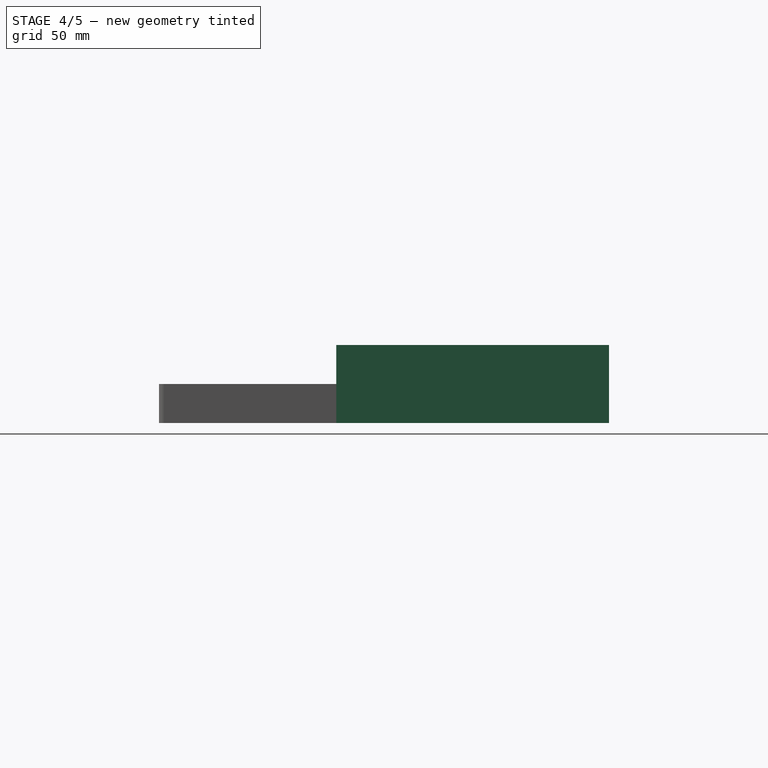
[diagram: stage 4 of 5 — right view after this stage's code; geometry added in this stage tinted green]
FEATURE [Part::Feature] K1_Motherboard_relocation_mount
  Placement = pos=(18.5,3.5,0) rot=(0,0,1;0rad)
  shape: bbox 172.4 x 94.02 x 9.015 mm, 529 faces (baked)
FEATURE [PartDesign::SubShapeBinder] Binder
  BindCopyOnChange = 0
  BindMode = 0
  ClaimChildren = false
  Context = -> Body [Binder.]
  Fuse = false
  MakeFace = true
  OffsetFill = false
  OffsetIntersection = false
  OffsetJoinType = 0
  OffsetOpenResult = false
  PartialLoad = false
  Placement = pos=(0,0,2.5) rot=(0,0,1;0rad)
  Refine = true
  Relative = true
  Support = -> [K1_Motherboard_relocation_mount[Edge893,Edge881,Edge899,Edge887]]
  _Version = 2
FEATURE [Sketcher::SketchObject] Sketch
  ArcFitTolerance = 0
  AttachmentSupport = -> [XY_Plane]
  ExternalTypes = [0]
  FullyConstrained = true
  MakeInternals = false
  MapMode = 5
  sketch-geometry (4):
    g0: LineSegment StartX=0 StartY=0 StartZ=0 EndX=145 EndY=0 EndZ=0
    g1: LineSegment StartX=145 StartY=0 StartZ=0 EndX=145 EndY=105 EndZ=0
    g2: LineSegment StartX=145 StartY=105 StartZ=0 EndX=0 EndY=105 EndZ=0
    g3: LineSegment StartX=0 StartY=105 StartZ=0 EndX=0 EndY=0 EndZ=0
  constraints (11):
    c: Coincident(g0,g1)
    c: Coincident(g1,g2)
    c: Coincident(g2,g3)
    c: Coincident(g3,g0)
    c: Horizontal(g0)
    c: Horizontal(g2)
    c: Vertical(g1)
    c: Vertical(g3)
    c: Coincident(g0,g-1)
    c: DistanceY(g1,g1) = 105
    c: DistanceX(g0,g0) = 145
FEATURE [PartDesign::Pad] Pad
  Direction = (0,0,1)
  Length = 30
  Length2 = 10
  Profile = -> Sketch
  ReferenceAxis = -> Sketch [N_Axis]
  Refine = true
  SideType = 0
  Suppressed = false
  Type = 0
  Type2 = 0
FEATURE [PartDesign::Body] Body  label="OldBottom"
  AllowCompound = false
  Group = -> [Sketch,Pad,Binder,Sketch001,Sketch002,Pocket,Sketch003,Pad001,Sketch004,Pocket001,Sketch005,Pocket002,Sketch006,Pocket003]
  Origin = -> Origin
  Tip = -> Pocket003
FEATURE [Sketcher::SketchObject] Sketch007
  ArcFitTolerance = 0
  AttachmentSupport = -> [XY_Plane001]
  ExternalTypes = [0]
  FullyConstrained = true
  MakeInternals = false
  MapMode = 5
  sketch-geometry (4):
    g0: LineSegment StartX=-75 StartY=55 StartZ=0 EndX=-75 EndY=-55 EndZ=0
    g1: LineSegment StartX=-75 StartY=-55 StartZ=0 EndX=75 EndY=-55 EndZ=0
    g2: LineSegment StartX=75 StartY=-55 StartZ=0 EndX=75 EndY=55 EndZ=0
    g3: LineSegment StartX=75 StartY=55 StartZ=0 EndX=-75 EndY=55 EndZ=0
  constraints (11):
    c: Coincident(g0,g1)
    c: Coincident(g1,g2)
    c: Coincident(g2,g3)
    c: Coincident(g3,g0)
    c: Vertical(g0)
    c: Vertical(g2)
    c: Horizontal(g1)
    c: Horizontal(g3)
    c: Symmetric(g0,g1,g-1)
    c: DistanceX(g3,g3) = 150
    c: DistanceY(g2,g2) = 110
FEATURE [PartDesign::Pad] Pad002
  Direction = (0,0,1)
  Length = 12
  Length2 = 10
  Profile = -> Sketch007
  ReferenceAxis = -> Sketch007 [N_Axis]
  Refine = true
  SideType = 0
  Suppressed = false
  Type = 0
  Type2 = 0
FEATURE [Sketcher::SketchObject] Sketch008
  ArcFitTolerance = 0
  AttachmentSupport = -> [Pad002]
  ExternalTypes = [0]
  FullyConstrained = true
  MakeInternals = false
  MapMode = 5
  Placement = pos=(0,0,12) rot=(0,0,1;0rad)
  sketch-geometry (4):
    g0: LineSegment StartX=-72.75 StartY=52.75 StartZ=0 EndX=-72.75 EndY=-52.75 EndZ=0
    g1: LineSegment StartX=-72.75 StartY=-52.75 StartZ=0 EndX=72.75 EndY=-52.75 EndZ=0
    g2: LineSegment StartX=72.75 StartY=-52.75 StartZ=0 EndX=72.75 EndY=52.75 EndZ=0
    g3: LineSegment StartX=72.75 StartY=52.75 StartZ=0 EndX=-72.75 EndY=52.75 EndZ=0
  constraints (11):
    c: Coincident(g0,g1)
    c: Coincident(g1,g2)
    c: Coincident(g2,g3)
    c: Coincident(g3,g0)
    c: Vertical(g0)
    c: Vertical(g2)
    c: Horizontal(g1)
    c: Horizontal(g3)
    c: Symmetric(g0,g1,g-1)
    c: DistanceX(g3,g3) = 145.5
    c: DistanceY(g2,g2) = 105.5
FEATURE [PartDesign::Pocket] Pocket004
  BaseFeature = -> Pad002
  Direction = (0,0,-1)
  Length = 10
  Length2 = 5
  Profile = -> Sketch008
  ReferenceAxis = -> Sketch008 [N_Axis]
  Refine = true
  SideType = 0
  Suppressed = false
  Type = 0
  Type2 = 0
FEATURE [Sketcher::SketchObject] Sketch009
  ArcFitTolerance = 0
  AttachmentSupport = -> [Pocket004]
  ExternalTypes = [0]
  FullyConstrained = false
  MakeInternals = false
  MapMode = 5
  Placement = pos=(0,0,2) rot=(0,0,1;0rad)
  sketch-geometry (7):
    g0: LineSegment StartX=-0.935974 StartY=47.1573 StartZ=0 EndX=0.935974 EndY=47.1573 EndZ=0
    g1: LineSegment StartX=4.53226 StartY=43.1203 StartZ=0 EndX=0 EndY=4.00328 EndZ=0
    g2: LineSegment StartX=0 StartY=4.00328 StartZ=0 EndX=-4.53226 EndY=43.1203 EndZ=0
    g3: ArcOfCircle CenterX=-0.935974 CenterY=43.537 CenterZ=0 NormalX=0 NormalY=0 NormalZ=1 AngleXU=0 Radius=3.62034 StartAngle=1.5708 EndAngle=3.25694
    g4: GeomPoint [constr] X=-5 Y=47.1573 Z=0
    g5: ArcOfCircle CenterX=0.935974 CenterY=43.537 CenterZ=0 NormalX=0 NormalY=0 NormalZ=1 AngleXU=0 Radius=3.62034 StartAngle=6.16784 EndAngle=7.85398
    g6: GeomPoint [constr] X=5 Y=47.1573 Z=0
  constraints (13):
    c: PointOnObject(g1,g-2)
    c: Coincident(g1,g2)
    c: DistanceX(g4,g6) = 10
    c: Symmetric(g4,g6,g-2)
    c: PointOnObject(g4,g0)
    c: PointOnObject(g4,g2)
    c: Tangent(g0,g3) = 1.5708
    c: Tangent(g2,g3) = 1.5708
    c: PointOnObject(g6,g0)
    c: PointOnObject(g6,g1)
    c: Tangent(g0,g5) = 1.5708
    c: Tangent(g1,g5) = 1.5708
    c: Equal(g5,g3)
FEATURE [PartDesign::Pocket] Pocket005
  BaseFeature = -> Pocket004
  Direction = (0,0,-1)
  Length = 5
  Length2 = 5
  Profile = -> Sketch009
  ReferenceAxis = -> Sketch009 [N_Axis]
  Refine = true
  SideType = 0
  Suppressed = false
  Type = 0
  Type2 = 0
FEATURE [PartDesign::PolarPattern] PolarPattern
  Angle = 360
  Axis = -> Sketch009 [N_Axis]
  BaseFeature = -> Pocket005
  Mode = 0
  Occurrences = 9
  Offset = 120
  Originals = -> [Pocket005]
  Refine = true
  SpacingPattern = [0]
  Spacings = [-1,-1,-1,-1,-1,-1,-1,-1]
  Suppressed = false
  TransformMode = 0
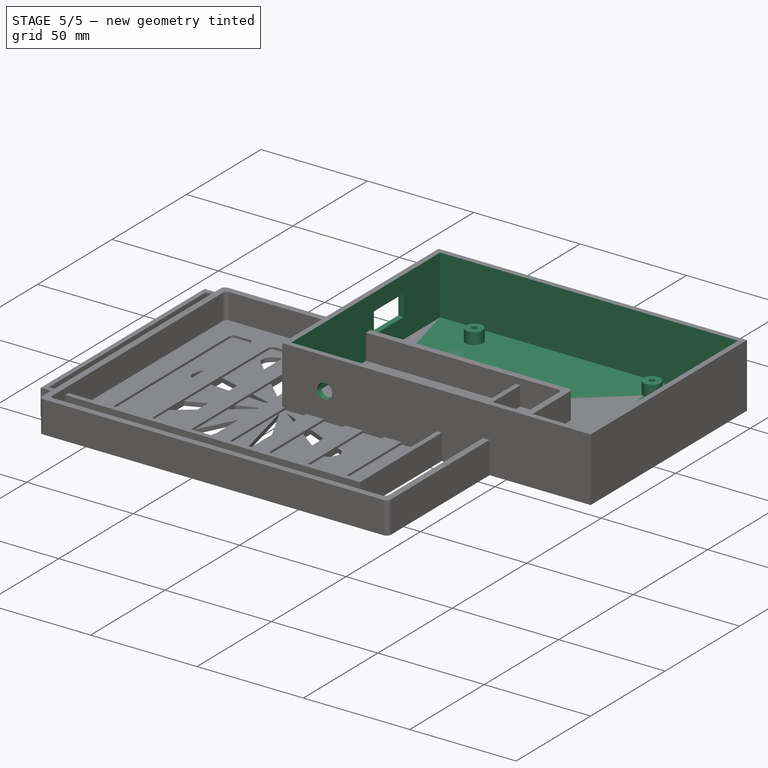
[diagram: stage 5 of 5 — iso view after this stage's code; geometry added in this stage tinted green]
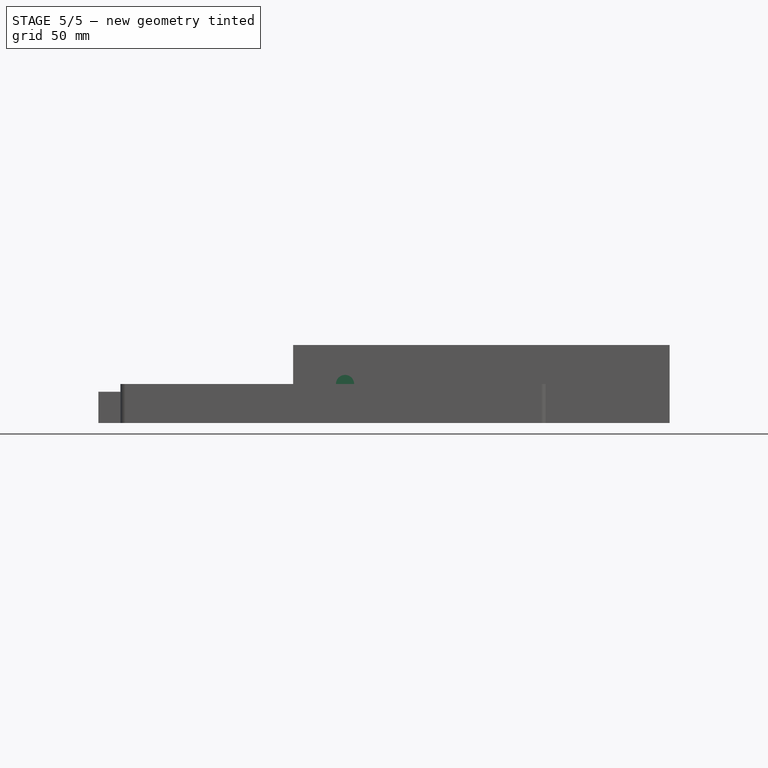
[diagram: stage 5 of 5 — front view after this stage's code; geometry added in this stage tinted green]
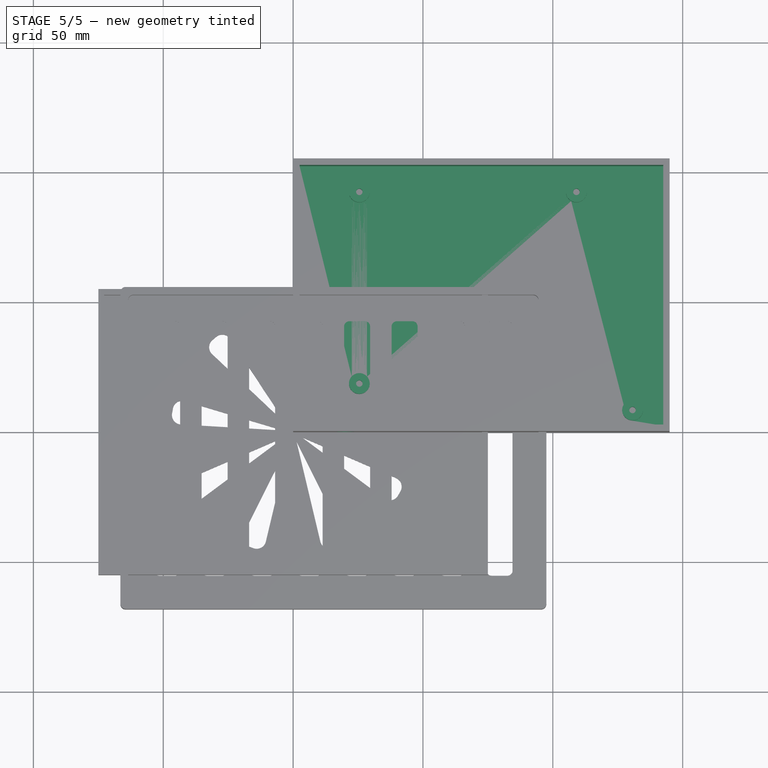
[diagram: stage 5 of 5 — top view after this stage's code; geometry added in this stage tinted green]
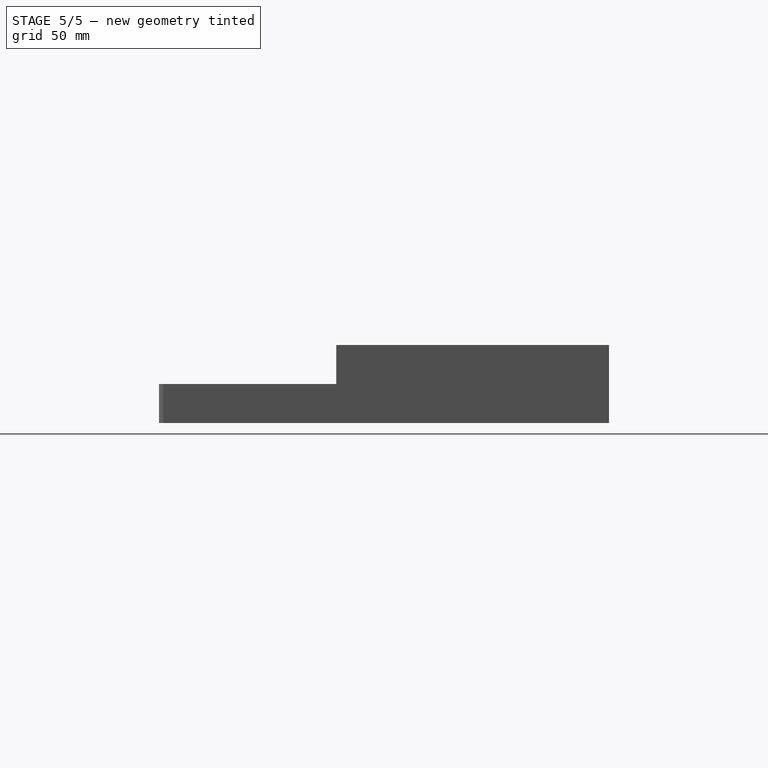
[diagram: stage 5 of 5 — right view after this stage's code; geometry added in this stage tinted green]
FEATURE [Sketcher::SketchObject] Sketch001
  ArcFitTolerance = 0
  AttachmentSupport = -> [Pad]
  ExternalGeometry = -> [Pad]
  ExternalTypes = [0]
  FullyConstrained = true
  MakeInternals = false
  MapMode = 5
  Placement = pos=(0,0,0) rot=(1,0,0;3.14159rad)
  sketch-geometry (4):
    g0: LineSegment StartX=2.5 StartY=-2.5 StartZ=0 EndX=2.5 EndY=-102.5 EndZ=0
    g1: LineSegment StartX=2.5 StartY=-102.5 StartZ=0 EndX=142.5 EndY=-102.5 EndZ=0
    g2: LineSegment StartX=142.5 StartY=-102.5 StartZ=0 EndX=142.5 EndY=-2.5 EndZ=0
    g3: LineSegment StartX=142.5 StartY=-2.5 StartZ=0 EndX=2.5 EndY=-2.5 EndZ=0
  constraints (12):
    c: Coincident(g0,g1)
    c: Coincident(g1,g2)
    c: Coincident(g2,g3)
    c: Coincident(g3,g0)
    c: Vertical(g0)
    c: Vertical(g2)
    c: Horizontal(g1)
    c: Horizontal(g3)
    c: DistanceX(g3,g3) = 140
    c: DistanceY(g2,g2) = 100
    c: DistanceX(g-1,g0) = 2.5
    c: DistanceY(g0,g-1) = 2.5
FEATURE [Sketcher::SketchObject] Sketch002
  ArcFitTolerance = 0
  AttachmentSupport = -> [Pad]
  ExternalTypes = [0]
  FullyConstrained = true
  MakeInternals = false
  MapMode = 5
  Placement = pos=(0,0,30) rot=(0,0,1;0rad)
  sketch-geometry (4):
    g0: LineSegment StartX=2.5 StartY=2.5 StartZ=0 EndX=142.5 EndY=2.5 EndZ=0
    g1: LineSegment StartX=142.5 StartY=2.5 StartZ=0 EndX=142.5 EndY=102.5 EndZ=0
    g2: LineSegment StartX=142.5 StartY=102.5 StartZ=0 EndX=2.5 EndY=102.5 EndZ=0
    g3: LineSegment StartX=2.5 StartY=102.5 StartZ=0 EndX=2.5 EndY=2.5 EndZ=0
  constraints (12):
    c: Coincident(g0,g1)
    c: Coincident(g1,g2)
    c: Coincident(g2,g3)
    c: Coincident(g3,g0)
    c: Horizontal(g0)
    c: Horizontal(g2)
    c: Vertical(g1)
    c: Vertical(g3)
    c: DistanceY(g1,g1) = 100
    c: DistanceX(g2,g2) = 140
    c: DistanceY(g-1,g0) = 2.5
    c: DistanceX(g-1,g0) = 2.5
FEATURE [PartDesign::Pocket] Pocket
  BaseFeature = -> Pad
  Direction = (0,0,-1)
  Length = 27.5
  Length2 = 5
  Profile = -> Sketch002
  ReferenceAxis = -> Sketch002 [N_Axis]
  Refine = true
  SideType = 0
  Suppressed = false
  Type = 0
  Type2 = 0
  expr: Length = Pad.Length - 2.5 mm
FEATURE [Sketcher::SketchObject] Sketch003
  ArcFitTolerance = 0
  AttachmentSupport = -> [Pocket]
  ExternalGeometry = -> [Binder]
  ExternalTypes = [0]
  FullyConstrained = true
  MakeInternals = false
  MapMode = 5
  Placement = pos=(0,0,2.5) rot=(0,0,1;0rad)
  sketch-geometry (8):
    g0: Circle CenterX=25.5 CenterY=92.5 CenterZ=0 NormalX=0 NormalY=0 NormalZ=1 AngleXU=0 Radius=4
    g1: Circle CenterX=109.08 CenterY=92.5 CenterZ=0 NormalX=0 NormalY=0 NormalZ=1 AngleXU=0 Radius=4
    g2: Circle CenterX=25.5 CenterY=18.7 CenterZ=0 NormalX=0 NormalY=0 NormalZ=1 AngleXU=0 Radius=4
    g3: Circle CenterX=130.7 CenterY=8.5 CenterZ=0 NormalX=0 NormalY=0 NormalZ=1 AngleXU=0 Radius=4
    g4: Circle CenterX=25.5 CenterY=92.5 CenterZ=0 NormalX=0 NormalY=0 NormalZ=1 AngleXU=0 Radius=1
    g5: Circle CenterX=109.08 CenterY=92.5 CenterZ=0 NormalX=0 NormalY=0 NormalZ=1 AngleXU=0 Radius=1
    g6: Circle CenterX=130.7 CenterY=8.5 CenterZ=0 NormalX=0 NormalY=0 NormalZ=1 AngleXU=0 Radius=1
    g7: Circle CenterX=25.5 CenterY=18.7 CenterZ=0 NormalX=0 NormalY=0 NormalZ=1 AngleXU=0 Radius=1
  constraints (16):
    c: Coincident(g0,g-6)
    c: Coincident(g1,g-3)
    c: Coincident(g2,g-5)
    c: Coincident(g3,g-4)
    c: Equal(g2,g0)
    c: Equal(g0,g1)
    c: Equal(g1,g3)
    c: Diameter(g0) = 8
    c: Coincident(g4,g0)
    c: Coincident(g5,g1)
    c: Coincident(g6,g3)
    c: Coincident(g7,g2)
    c: Equal(g7,g4)
    c: Equal(g4,g5)
    c: Equal(g5,g6)
    c: Diameter(g4) = 2
FEATURE [PartDesign::Pad] Pad001
  BaseFeature = -> Pocket
  Direction = (0,0,1)
  Length = 5.5
  Length2 = 10
  Profile = -> Sketch003
  ReferenceAxis = -> Sketch003 [N_Axis]
  Refine = true
  SideType = 0
  Suppressed = false
  Type = 0
  Type2 = 0
FEATURE [Sketcher::SketchObject] Sketch004
  ArcFitTolerance = 0
  AttachmentSupport = -> [Pad001]
  ExternalGeometry = -> [Pad001]
  ExternalTypes = [0]
  FullyConstrained = true
  MakeInternals = false
  MapMode = 5
  Placement = pos=(0,0,0) rot=(0.57735,-0.57735,-0.57735;2.0944rad)
  sketch-geometry (4):
    g0: LineSegment StartX=-78 StartY=22 StartZ=0 EndX=-78 EndY=12 EndZ=0
    g1: LineSegment StartX=-78 StartY=12 StartZ=0 EndX=-58 EndY=12 EndZ=0
    g2: LineSegment StartX=-58 StartY=12 StartZ=0 EndX=-58 EndY=22 EndZ=0
    g3: LineSegment StartX=-58 StartY=22 StartZ=0 EndX=-78 EndY=22 EndZ=0
  constraints (12):
    c: Coincident(g0,g1)
    c: Coincident(g1,g2)
    c: Coincident(g2,g3)
    c: Coincident(g3,g0)
    c: Vertical(g0)
    c: Vertical(g2)
    c: Horizontal(g1)
    c: Horizontal(g3)
    c: DistanceY(g-4,g0) = 12
    c: DistanceX(g3,g3) = 20
    c: DistanceY(g2,g2) = 10
    c: DistanceX(g-4,g0) = 27
FEATURE [PartDesign::Pocket] Pocket001
  BaseFeature = -> Pad001
  Direction = (1,0,0)
  Length = 7.5
  Length2 = 5
  Profile = -> Sketch004
  ReferenceAxis = -> Sketch004 [N_Axis]
  Refine = true
  SideType = 0
  Suppressed = false
  Type = 2
  Type2 = 0
FEATURE [Sketcher::SketchObject] Sketch005
  ArcFitTolerance = 0
  AttachmentSupport = -> [Pocket001]
  ExternalTypes = [0]
  FullyConstrained = true
  MakeInternals = false
  MapMode = 5
  Placement = pos=(0,0,0) rot=(1,0,0;1.5708rad)
  expr: Constraints[1] = Pad.Length / 2
  sketch-geometry (1):
    g0: Circle CenterX=20 CenterY=15 CenterZ=0 NormalX=0 NormalY=0 NormalZ=1 AngleXU=0 Radius=3.5
  constraints (3):
    c: Diameter(g0) = 7
    c: DistanceY(g-1,g0) = 15
    c: DistanceX(g-1,g0) = 20
FEATURE [PartDesign::Pocket] Pocket002
  BaseFeature = -> Pocket001
  Direction = (0,1,-2e-16)
  Length = 7.5
  Length2 = 5
  Profile = -> Sketch005
  ReferenceAxis = -> Sketch005 [N_Axis]
  Refine = true
  SideType = 0
  Suppressed = false
  Type = 2
  Type2 = 0
FEATURE [Sketcher::SketchObject] Sketch006
  ArcFitTolerance = 0
  AttachmentSupport = -> [Pocket002]
  ExternalGeometry = -> [Pocket002]
  ExternalTypes = [0]
  FullyConstrained = true
  MakeInternals = false
  MapMode = 5
  Placement = pos=(0,0,8) rot=(0,0,1;0rad)
  sketch-geometry (4):
    g0: Circle CenterX=25.5 CenterY=92.5 CenterZ=0 NormalX=0 NormalY=0 NormalZ=1 AngleXU=0 Radius=1.25
    g1: Circle CenterX=109.08 CenterY=92.5 CenterZ=0 NormalX=0 NormalY=0 NormalZ=1 AngleXU=0 Radius=1.25
    g2: Circle CenterX=25.5 CenterY=18.7 CenterZ=0 NormalX=0 NormalY=0 NormalZ=1 AngleXU=0 Radius=1.25
    g3: Circle CenterX=130.7 CenterY=8.5 CenterZ=0 NormalX=0 NormalY=0 NormalZ=1 AngleXU=0 Radius=1.25
  constraints (8):
    c: Coincident(g0,g-6)
    c: Coincident(g1,g-3)
    c: Coincident(g2,g-5)
    c: Coincident(g3,g-4)
    c: Equal(g2,g0)
    c: Equal(g0,g1)
    c: Diameter(g0) = 2.5
    c: Equal(g2,g3)
FEATURE [PartDesign::Pocket] Pocket003
  BaseFeature = -> Pocket002
  Direction = (0,0,-1)
  Length = 7.5
  Length2 = 5
  Profile = -> Sketch006
  ReferenceAxis = -> Sketch006 [N_Axis]
  Refine = true
  SideType = 0
  Suppressed = false
  Type = 0
  Type2 = 0
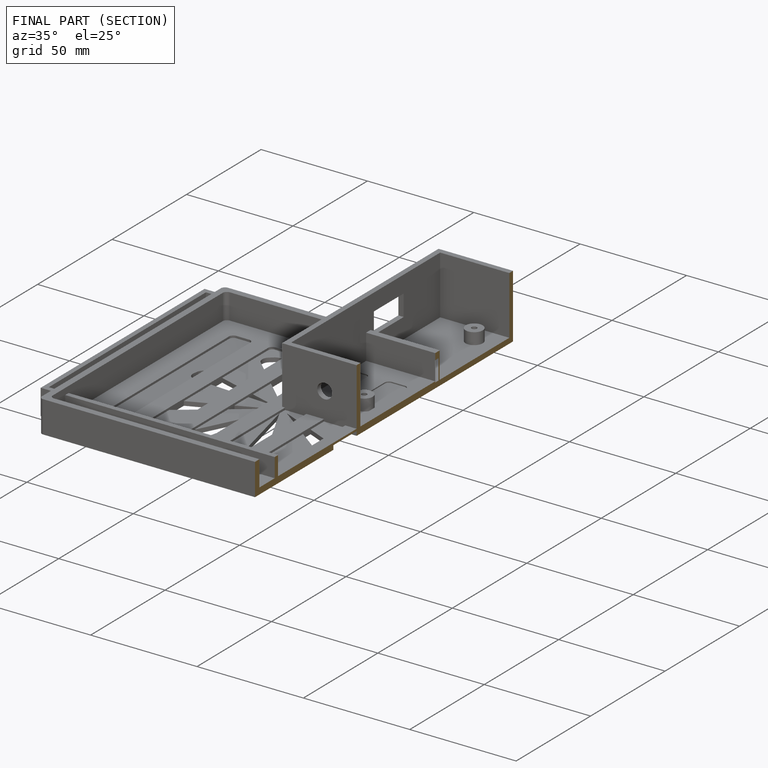
[diagram: finished part — half-section view (interior)]
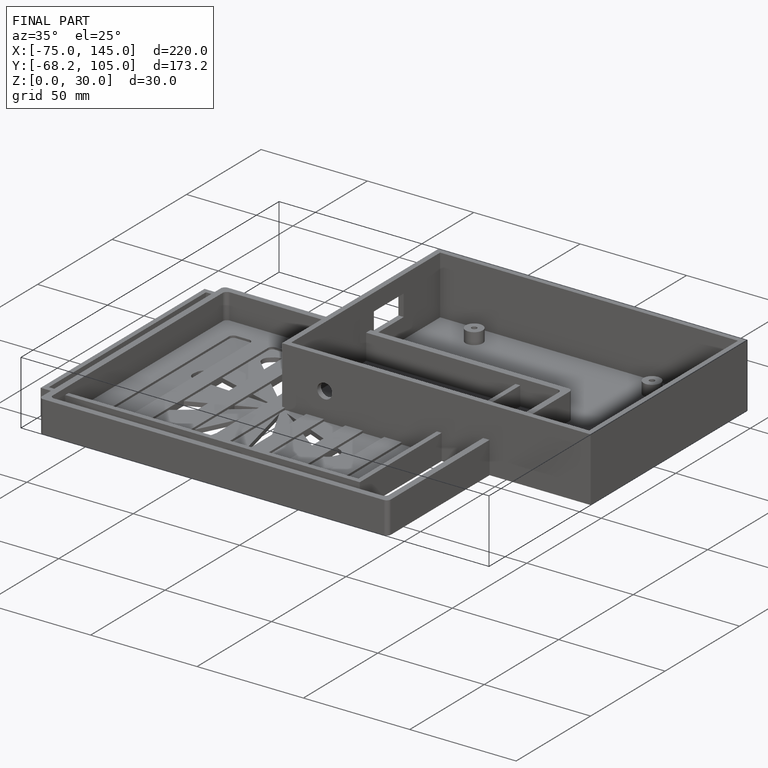
[diagram: finished part — iso view with bounding-box wireframe]
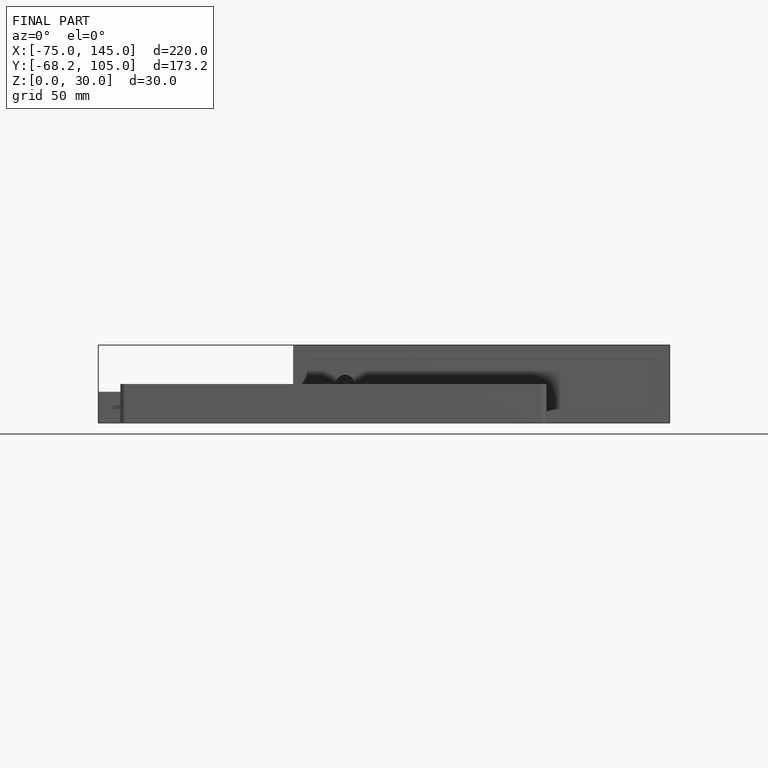
[diagram: finished part — front view with bounding-box wireframe]
